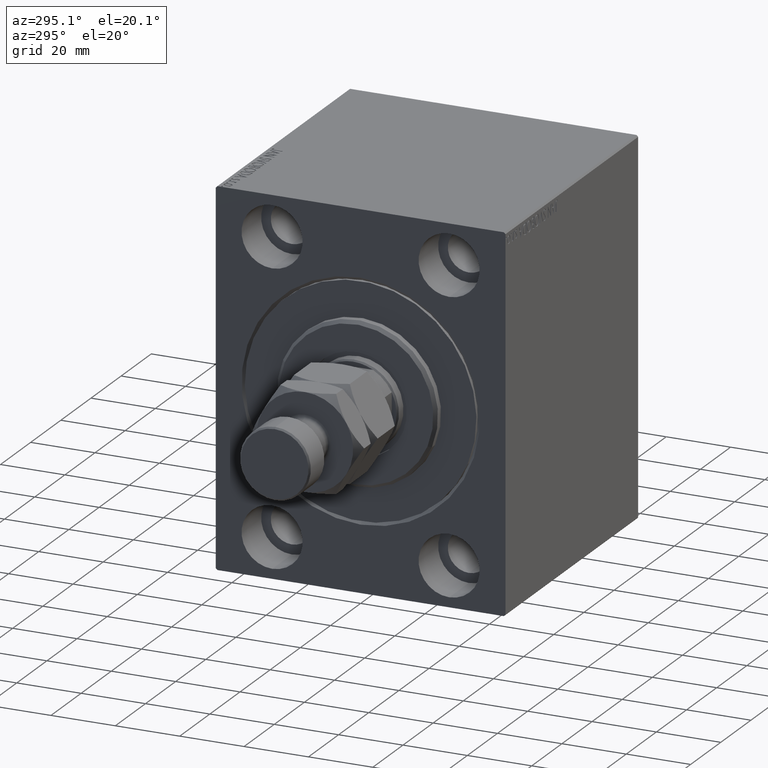
[diagram: clean part render]
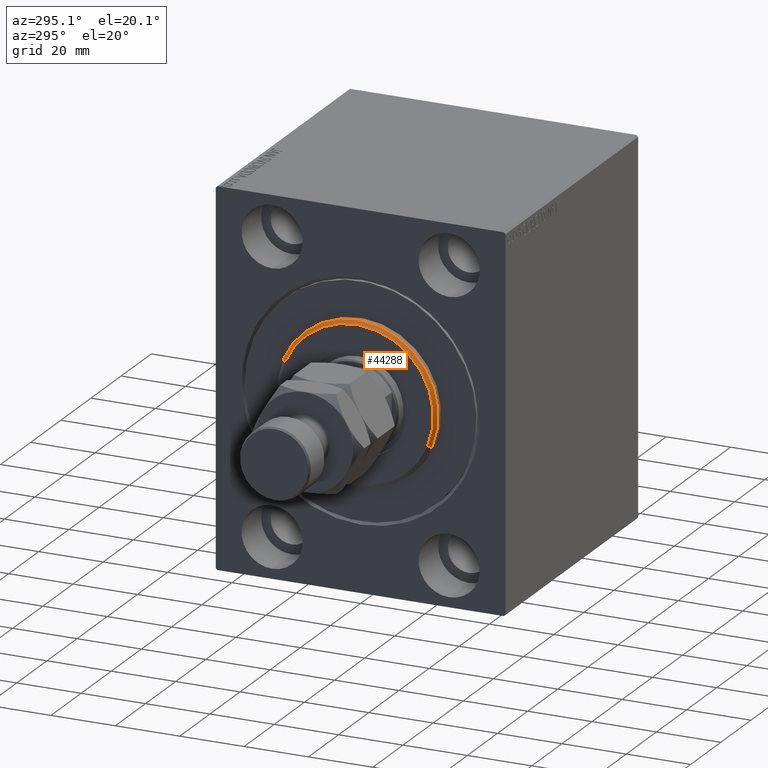
[diagram: same view with one face highlighted and labeled with its STEP entity id]
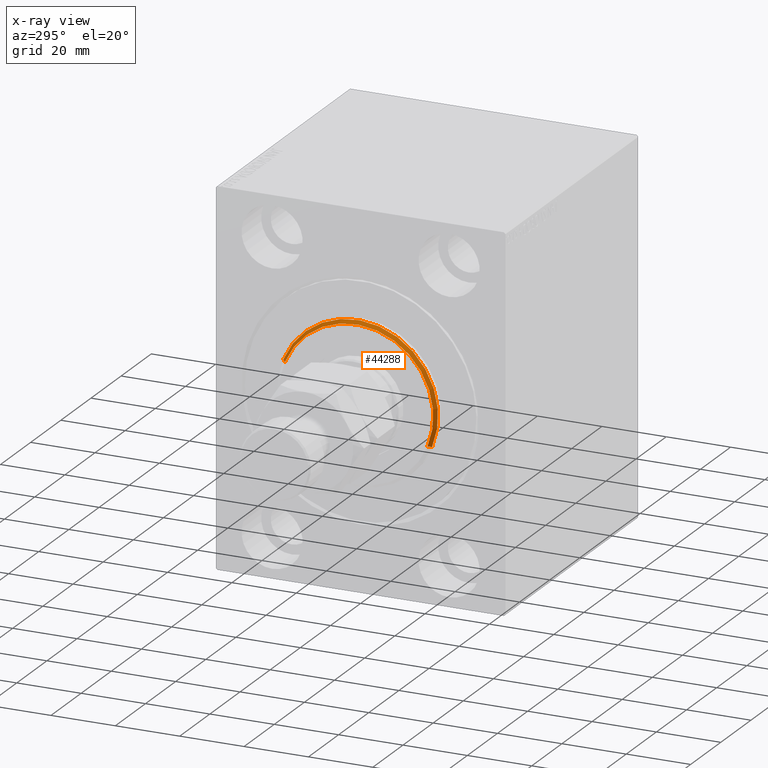
[diagram: x-ray of the same camera — body ghosted, the highlighted face saturated]
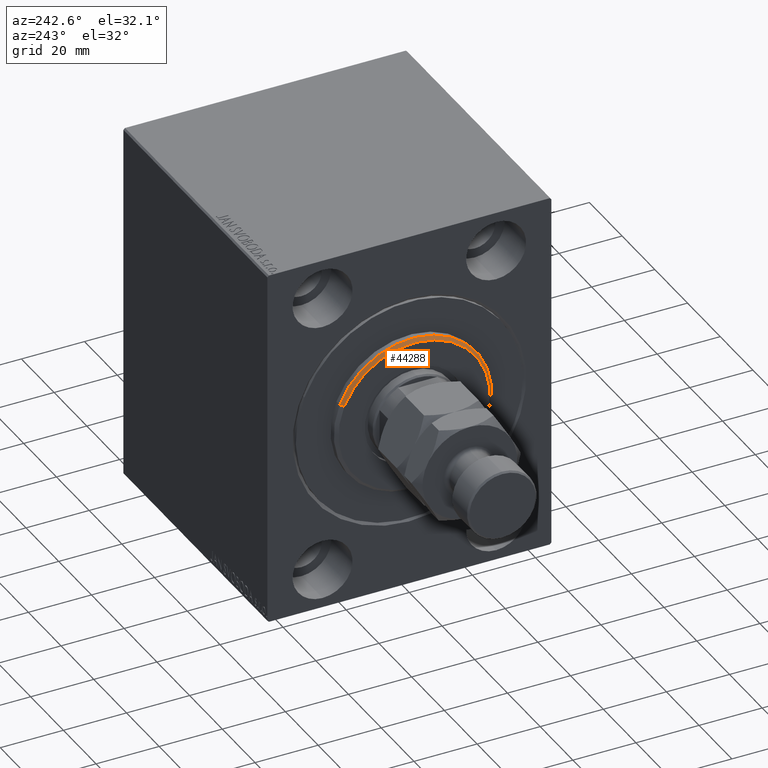
[diagram: same view with one face highlighted and labeled with its STEP entity id]
A machine part, auxiliary view. The second image highlights one B-rep face of the part: STEP entity #44288.
The next image is the same camera in x-ray: the body ghosted, the highlighted face saturated — about 0% of this face is hidden behind the body in this view.
A second angle (auxiliary view) of the same face is appended — the face is thin or edge-on in the first view.
In plain terms, the highlighted conical surface has half-angle 45 deg.
Its self-contained STEP definition (entity closure, byte-faithful):
#287 = ORIENTED_EDGE ( 'NONE', *, *, #34400, .F. ) ;
#371 = CARTESIAN_POINT ( 'NONE',  ( 2.000000000000030198, 0.000000000000000000, 0.000000000000000000 ) ) ;
#3699 = ORIENTED_EDGE ( 'NONE', *, *, #7157, .F. ) ;
#3835 = DIRECTION ( 'NONE',  ( 0.000000000000000000, 0.000000000000000000, -1.000000000000000000 ) ) ;
#5151 = VERTEX_POINT ( 'NONE', #45516 ) ;
#6175 = CARTESIAN_POINT ( 'NONE',  ( 3.000000000000000000, 0.000000000000000000, 24.00000000000003553 ) ) ;
#7135 = DIRECTION ( 'NONE',  ( -0.7071067811865489050, 0.000000000000000000, 0.7071067811865462405 ) ) ;
#7157 = EDGE_CURVE ( 'NONE', #5151, #33057, #34101, .T. ) ;
#8986 = CIRCLE ( 'NONE', #34667, 24.00000000000003553 ) ;
#9200 = VERTEX_POINT ( 'NONE', #6175 ) ;
#9808 = DIRECTION ( 'NONE',  ( 0.000000000000000000, 0.000000000000000000, -1.000000000000000000 ) ) ;
#10260 = CARTESIAN_POINT ( 'NONE',  ( 3.000000000000000000, 0.000000000000000000, 0.000000000000000000 ) ) ;
#11511 = LINE ( 'NONE', #32421, #34792 ) ;
#12172 = EDGE_CURVE ( 'NONE', #9200, #5151, #8986, .T. ) ;
#13088 = DIRECTION ( 'NONE',  ( -1.000000000000000000, 0.000000000000000000, 0.000000000000000000 ) ) ;
#16529 = EDGE_CURVE ( 'NONE', #9200, #31129, #11511, .T. ) ;
#16602 = AXIS2_PLACEMENT_3D ( 'NONE', #371, #42226, #3835 ) ;
#19658 = DIRECTION ( 'NONE',  ( -0.7071067811865489050, 8.659560562354918067E-17, -0.7071067811865462405 ) ) ;
#23915 = CARTESIAN_POINT ( 'NONE',  ( 2.000000000000030198, 3.061616997868383043E-15, -25.00000000000000000 ) ) ;
#27634 = ORIENTED_EDGE ( 'NONE', *, *, #16529, .T. ) ;
#29367 = CARTESIAN_POINT ( 'NONE',  ( 3.000000000000000000, 2.939152317953651839E-15, -24.00000000000003553 ) ) ;
#31129 = VERTEX_POINT ( 'NONE', #40071 ) ;
#31686 = VECTOR ( 'NONE', #19658, 999.9999999999998863 ) ;
#32421 = CARTESIAN_POINT ( 'NONE',  ( 3.000000000000000000, 0.000000000000000000, 24.00000000000003553 ) ) ;
#33057 = VERTEX_POINT ( 'NONE', #23915 ) ;
#33597 = EDGE_LOOP ( 'NONE', ( #3699, #33779, #27634, #287 ) ) ;
#33766 = DIRECTION ( 'NONE',  ( 0.000000000000000000, 0.000000000000000000, 1.000000000000000000 ) ) ;
#33779 = ORIENTED_EDGE ( 'NONE', *, *, #12172, .F. ) ;
#34101 = LINE ( 'NONE', #29367, #31686 ) ;
#34212 = CARTESIAN_POINT ( 'NONE',  ( 3.000000000000000000, 0.000000000000000000, 0.000000000000000000 ) ) ;
#34400 = EDGE_CURVE ( 'NONE', #33057, #31129, #45305, .T. ) ;
#34667 = AXIS2_PLACEMENT_3D ( 'NONE', #10260, #37615, #9808 ) ;
#34792 = VECTOR ( 'NONE', #7135, 999.9999999999998863 ) ;
#36685 = CONICAL_SURFACE ( 'NONE', #42530, 24.00000000000003553, 0.7853981633974465026 ) ;
#37434 = FACE_OUTER_BOUND ( 'NONE', #33597, .T. ) ;
#37615 = DIRECTION ( 'NONE',  ( 1.000000000000000000, -0.000000000000000000, 0.000000000000000000 ) ) ;
#40071 = CARTESIAN_POINT ( 'NONE',  ( 2.000000000000030198, 0.000000000000000000, 25.00000000000000000 ) ) ;
#42226 = DIRECTION ( 'NONE',  ( -1.000000000000000000, 0.000000000000000000, 0.000000000000000000 ) ) ;
#42530 = AXIS2_PLACEMENT_3D ( 'NONE', #34212, #13088, #33766 ) ;
#44288 = ADVANCED_FACE ( 'NONE', ( #37434 ), #36685, .T. ) ;
#45305 = CIRCLE ( 'NONE', #16602, 25.00000000000000000 ) ;
#45516 = CARTESIAN_POINT ( 'NONE',  ( 3.000000000000000000, 3.000384657911017441E-15, -24.00000000000003553 ) ) ;